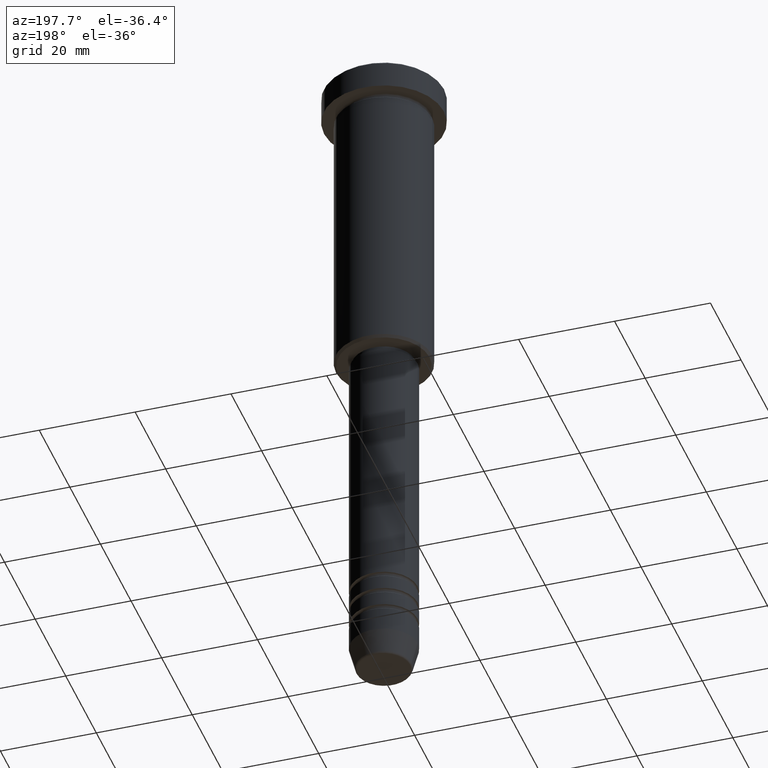
[diagram: clean part render]
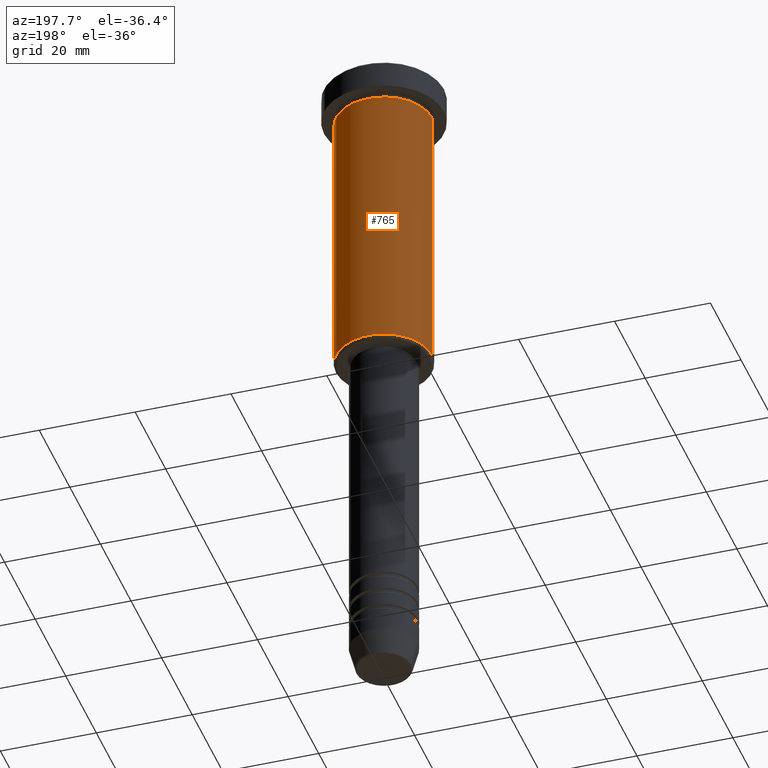
[diagram: same view with one face highlighted and labeled with its STEP entity id]
A machine part, auxiliary view. The second image highlights one B-rep face of the part: STEP entity #765.
In plain terms, the highlighted cylindrical surface (partial cylindrical patch) has radius 10 mm, axis along (-0, -0, 1).
Its self-contained STEP definition (entity closure, byte-faithful):
#27 = EDGE_CURVE ( 'NONE', #64, #314, #585, .T. ) ;
#42 = DIRECTION ( 'NONE',  ( -0.000000000000000000, -0.000000000000000000, 1.000000000000000000 ) ) ;
#64 = VERTEX_POINT ( 'NONE', #234 ) ;
#109 = FACE_OUTER_BOUND ( 'NONE', #919, .T. ) ;
#123 = CARTESIAN_POINT ( 'NONE',  ( 10.00000000000000000, 0.000000000000000000, -6.999999999999996447 ) ) ;
#128 = CIRCLE ( 'NONE', #665, 10.00000000000000000 ) ;
#208 = EDGE_CURVE ( 'NONE', #880, #554, #720, .T. ) ;
#211 = CARTESIAN_POINT ( 'NONE',  ( 10.00000000000000000, 0.000000000000000000, 0.000000000000000000 ) ) ;
#234 = CARTESIAN_POINT ( 'NONE',  ( 10.00000000000000000, 0.000000000000000000, -65.49999999999998579 ) ) ;
#295 = AXIS2_PLACEMENT_3D ( 'NONE', #661, #406, #316 ) ;
#314 = VERTEX_POINT ( 'NONE', #123 ) ;
#316 = DIRECTION ( 'NONE',  ( 1.000000000000000000, 0.000000000000000000, 0.000000000000000000 ) ) ;
#376 = CARTESIAN_POINT ( 'NONE',  ( -10.00000000000000000, 1.224646799147353256E-15, -6.999999999999996447 ) ) ;
#406 = DIRECTION ( 'NONE',  ( -0.000000000000000000, -0.000000000000000000, 1.000000000000000000 ) ) ;
#500 = EDGE_CURVE ( 'NONE', #64, #880, #128, .T. ) ;
#511 = DIRECTION ( 'NONE',  ( -0.000000000000000000, -0.000000000000000000, 1.000000000000000000 ) ) ;
#521 = CARTESIAN_POINT ( 'NONE',  ( 0.000000000000000000, 0.000000000000000000, -6.999999999999996447 ) ) ;
#524 = CARTESIAN_POINT ( 'NONE',  ( 0.000000000000000000, 0.000000000000000000, -65.49999999999998579 ) ) ;
#554 = VERTEX_POINT ( 'NONE', #376 ) ;
#585 = LINE ( 'NONE', #211, #1095 ) ;
#661 = CARTESIAN_POINT ( 'NONE',  ( 0.000000000000000000, 0.000000000000000000, 0.000000000000000000 ) ) ;
#665 = AXIS2_PLACEMENT_3D ( 'NONE', #524, #511, #901 ) ;
#684 = CYLINDRICAL_SURFACE ( 'NONE', #295, 10.00000000000000000 ) ;
#720 = LINE ( 'NONE', #1168, #851 ) ;
#733 = ORIENTED_EDGE ( 'NONE', *, *, #1130, .F. ) ;
#765 = ADVANCED_FACE ( 'NONE', ( #109 ), #684, .T. ) ;
#787 = ORIENTED_EDGE ( 'NONE', *, *, #208, .T. ) ;
#797 = DIRECTION ( 'NONE',  ( 1.000000000000000000, 0.000000000000000000, 0.000000000000000000 ) ) ;
#851 = VECTOR ( 'NONE', #1173, 1000.000000000000000 ) ;
#870 = CARTESIAN_POINT ( 'NONE',  ( -10.00000000000000000, 1.224646799147353256E-15, -65.49999999999998579 ) ) ;
#880 = VERTEX_POINT ( 'NONE', #870 ) ;
#901 = DIRECTION ( 'NONE',  ( -1.000000000000000000, 0.000000000000000000, 0.000000000000000000 ) ) ;
#919 = EDGE_LOOP ( 'NONE', ( #1146, #787, #733, #927 ) ) ;
#927 = ORIENTED_EDGE ( 'NONE', *, *, #27, .F. ) ;
#942 = AXIS2_PLACEMENT_3D ( 'NONE', #521, #42, #797 ) ;
#953 = DIRECTION ( 'NONE',  ( -0.000000000000000000, -0.000000000000000000, 1.000000000000000000 ) ) ;
#1095 = VECTOR ( 'NONE', #953, 1000.000000000000000 ) ;
#1130 = EDGE_CURVE ( 'NONE', #314, #554, #1181, .T. ) ;
#1146 = ORIENTED_EDGE ( 'NONE', *, *, #500, .T. ) ;
#1168 = CARTESIAN_POINT ( 'NONE',  ( -10.00000000000000000, 1.224646799147353256E-15, 0.000000000000000000 ) ) ;
#1173 = DIRECTION ( 'NONE',  ( -0.000000000000000000, -0.000000000000000000, 1.000000000000000000 ) ) ;
#1181 = CIRCLE ( 'NONE', #942, 10.00000000000000000 ) ;